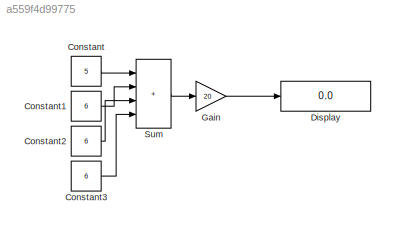
MODEL slx_a559f4d99775
KIND model
CONFIG AbsTol = auto
CONFIG EnableMultiTasking = off
CONFIG FixedStep = auto
CONFIG MaxStep = auto
CONFIG MinStep = auto
CONFIG RelTol = 1e-3
CONFIG SampleTimeConstraint = Unconstrained
CONFIG SolverName = VariableStepAuto
CONFIG StartTime = 0.0
CONFIG StopTime = 10.0
BLOCK [Constant] Constant
  Value = 5
BLOCK [Constant] Constant1
  Value = 6
BLOCK [Constant] Constant2
  Value = 6
BLOCK [Constant] Constant3
  Value = 6
BLOCK [Display] Display
  Decimation = 1
BLOCK [Gain] Gain
  Gain = 20
BLOCK [Sum] Sum
  IconShape = rectangular
  Inputs = ++++
LINE Constant1:1 -> Sum:2
LINE Constant2:1 -> Sum:3
LINE Constant3:1 -> Sum:4
LINE Constant:1 -> Sum:1
LINE Gain:1 -> Display:1
LINE Sum:1 -> Gain:1
